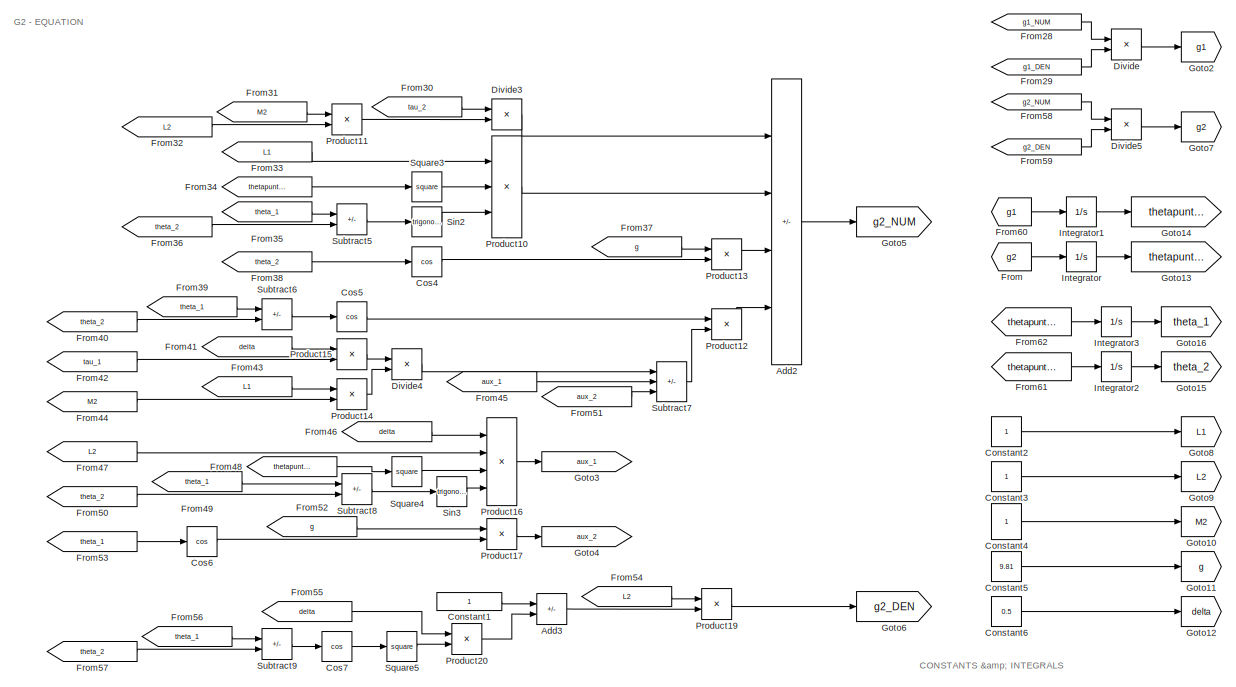
[diagram: root canvas - part 1/3, middle right region]
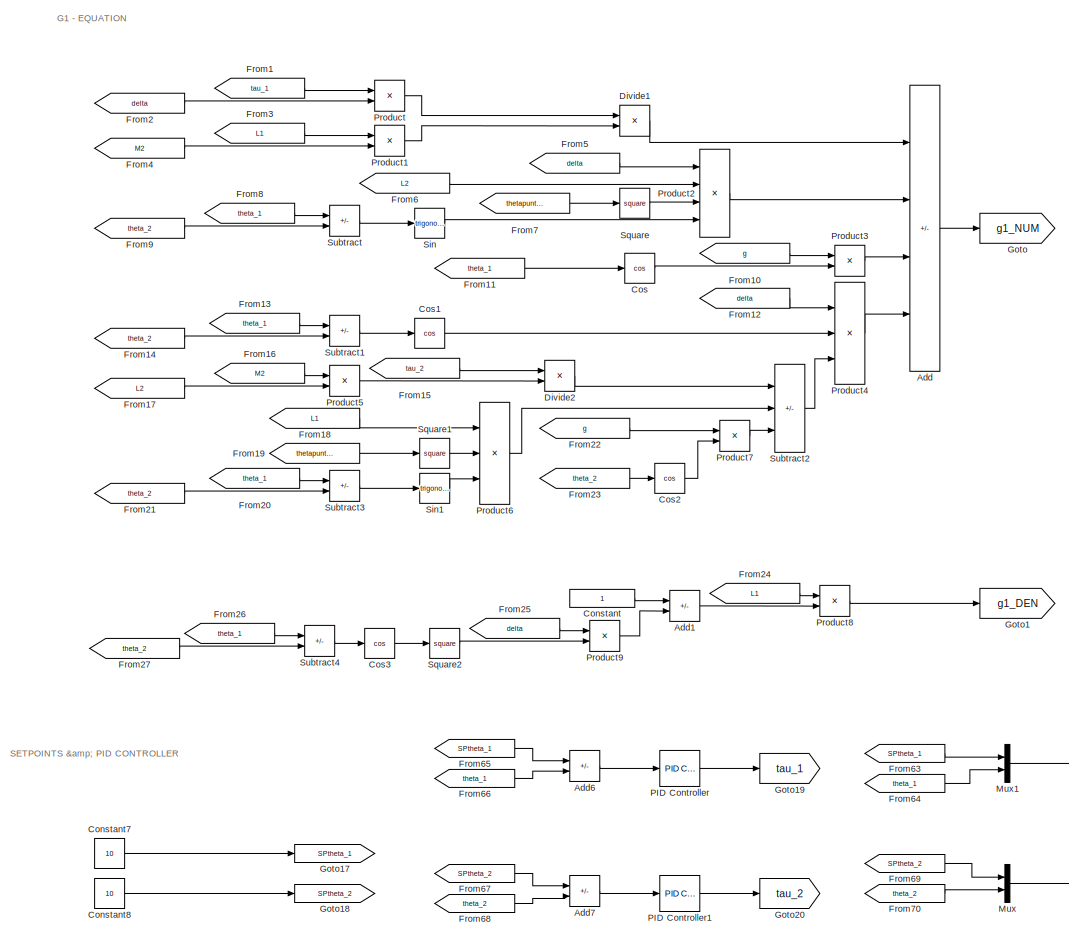
[diagram: root canvas - part 2/3, left side, full height]
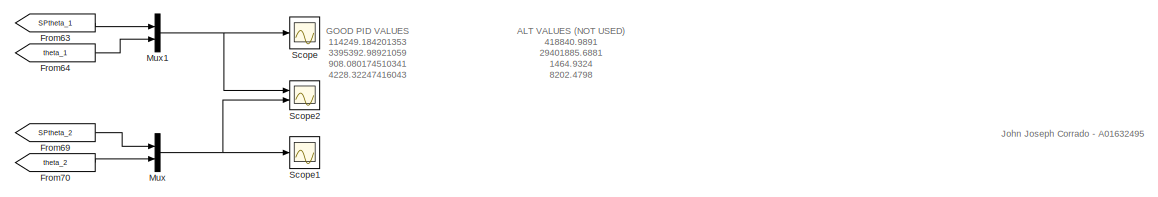
[diagram: root canvas - part 3/3, bottom center region]
MODEL slx_419f2463d6c4
KIND model
CONFIG AbsTol = auto
CONFIG EnableMultiTasking = off
CONFIG FixedStep = auto
CONFIG MaxStep = auto
CONFIG MinStep = auto
CONFIG RelTol = 1e-3
CONFIG SampleTimeConstraint = Unconstrained
CONFIG SolverName = VariableStepAuto
CONFIG StartTime = 0.0
CONFIG StopTime = 1
BLOCK [Sum] Add
  IconShape = rectangular
  Inputs = +---
  Ports = [4, 1]
BLOCK [Sum] Add1
  IconShape = rectangular
  Inputs = +-
  Ports = [2, 1]
BLOCK [Sum] Add2
  IconShape = rectangular
  Inputs = ++--
  Ports = [4, 1]
BLOCK [Sum] Add3
  IconShape = rectangular
  Inputs = +-
  Ports = [2, 1]
BLOCK [Sum] Add6
  IconShape = rectangular
  Inputs = +-
  Ports = [2, 1]
BLOCK [Sum] Add7
  IconShape = rectangular
  Inputs = +-
  Ports = [2, 1]
BLOCK [Constant] Constant
BLOCK [Constant] Constant1
BLOCK [Constant] Constant2
BLOCK [Constant] Constant3
BLOCK [Constant] Constant4
BLOCK [Constant] Constant5
  Value = 9.81
BLOCK [Constant] Constant6
  Value = 0.5
BLOCK [Constant] Constant7
  Value = 10
BLOCK [Constant] Constant8
  Value = 10
BLOCK [Trigonometry] Cos
  Operator = cos
  Ports = [1, 1]
BLOCK [Trigonometry] Cos1
  Operator = cos
  Ports = [1, 1]
BLOCK [Trigonometry] Cos2
  Operator = cos
  Ports = [1, 1]
BLOCK [Trigonometry] Cos3
  Operator = cos
  Ports = [1, 1]
BLOCK [Trigonometry] Cos4
  Operator = cos
  Ports = [1, 1]
BLOCK [Trigonometry] Cos5
  Operator = cos
  Ports = [1, 1]
BLOCK [Trigonometry] Cos6
  Operator = cos
  Ports = [1, 1]
BLOCK [Trigonometry] Cos7
  Operator = cos
  Ports = [1, 1]
BLOCK [Product] Divide
  Inputs = */
  Ports = [2, 1]
BLOCK [Product] Divide1
  Inputs = */
  Ports = [2, 1]
BLOCK [Product] Divide2
  Inputs = */
  Ports = [2, 1]
BLOCK [Product] Divide3
  Inputs = */
  Ports = [2, 1]
BLOCK [Product] Divide4
  Inputs = */
  Ports = [2, 1]
BLOCK [Product] Divide5
  Inputs = */
  Ports = [2, 1]
BLOCK [From] From
  GotoTag = g2
BLOCK [From] From1
  GotoTag = tau_1
BLOCK [From] From10
  GotoTag = g
BLOCK [From] From11
  GotoTag = theta_1
BLOCK [From] From12
  GotoTag = delta
BLOCK [From] From13
  GotoTag = theta_1
BLOCK [From] From14
  GotoTag = theta_2
BLOCK [From] From15
  GotoTag = tau_2
BLOCK [From] From16
  GotoTag = M2
BLOCK [From] From17
  GotoTag = L2
BLOCK [From] From18
  GotoTag = L1
BLOCK [From] From19
  GotoTag = thetapunto1
BLOCK [From] From2
  GotoTag = delta
BLOCK [From] From20
  GotoTag = theta_1
BLOCK [From] From21
  GotoTag = theta_2
BLOCK [From] From22
  GotoTag = g
BLOCK [From] From23
  GotoTag = theta_2
BLOCK [From] From24
  GotoTag = L1
BLOCK [From] From25
  GotoTag = delta
BLOCK [From] From26
  GotoTag = theta_1
BLOCK [From] From27
  GotoTag = theta_2
BLOCK [From] From28
  GotoTag = g1_NUM
BLOCK [From] From29
  GotoTag = g1_DEN
BLOCK [From] From3
  GotoTag = L1
BLOCK [From] From30
  GotoTag = tau_2
BLOCK [From] From31
  GotoTag = M2
BLOCK [From] From32
  GotoTag = L2
BLOCK [From] From33
  GotoTag = L1
BLOCK [From] From34
  GotoTag = thetapunto1
BLOCK [From] From35
  GotoTag = theta_1
BLOCK [From] From36
  GotoTag = theta_2
BLOCK [From] From37
  GotoTag = g
BLOCK [From] From38
  GotoTag = theta_2
BLOCK [From] From39
  GotoTag = theta_1
BLOCK [From] From4
  GotoTag = M2
BLOCK [From] From40
  GotoTag = theta_2
BLOCK [From] From41
  GotoTag = delta
BLOCK [From] From42
  GotoTag = tau_1
BLOCK [From] From43
  GotoTag = L1
BLOCK [From] From44
  GotoTag = M2
BLOCK [From] From45
  GotoTag = aux_1
BLOCK [From] From46
  GotoTag = delta
BLOCK [From] From47
  GotoTag = L2
BLOCK [From] From48
  GotoTag = thetapunto2
BLOCK [From] From49
  GotoTag = theta_1
BLOCK [From] From5
  GotoTag = delta
BLOCK [From] From50
  GotoTag = theta_2
BLOCK [From] From51
  GotoTag = aux_2
BLOCK [From] From52
  GotoTag = g
BLOCK [From] From53
  GotoTag = theta_1
BLOCK [From] From54
  GotoTag = L2
BLOCK [From] From55
  GotoTag = delta
BLOCK [From] From56
  GotoTag = theta_1
BLOCK [From] From57
  GotoTag = theta_2
BLOCK [From] From58
  GotoTag = g2_NUM
BLOCK [From] From59
  GotoTag = g2_DEN
BLOCK [From] From6
  GotoTag = L2
BLOCK [From] From60
  GotoTag = g1
BLOCK [From] From61
  GotoTag = thetapunto2
BLOCK [From] From62
  GotoTag = thetapunto1
BLOCK [From] From63
  GotoTag = SPtheta_1
BLOCK [From] From64
  GotoTag = theta_1
BLOCK [From] From65
  GotoTag = SPtheta_1
BLOCK [From] From66
  GotoTag = theta_1
BLOCK [From] From67
  GotoTag = SPtheta_2
BLOCK [From] From68
  GotoTag = theta_2
BLOCK [From] From69
  GotoTag = SPtheta_2
BLOCK [From] From7
  GotoTag = thetapunto2
BLOCK [From] From70
  GotoTag = theta_2
BLOCK [From] From8
  GotoTag = theta_1
BLOCK [From] From9
  GotoTag = theta_2
BLOCK [Goto] Goto
  GotoTag = g1_NUM
BLOCK [Goto] Goto1
  GotoTag = g1_DEN
BLOCK [Goto] Goto10
  GotoTag = M2
BLOCK [Goto] Goto11
  GotoTag = g
BLOCK [Goto] Goto12
  GotoTag = delta
BLOCK [Goto] Goto13
  GotoTag = thetapunto2
BLOCK [Goto] Goto14
  GotoTag = thetapunto1
BLOCK [Goto] Goto15
  GotoTag = theta_2
BLOCK [Goto] Goto16
  GotoTag = theta_1
BLOCK [Goto] Goto17
  GotoTag = SPtheta_1
BLOCK [Goto] Goto18
  GotoTag = SPtheta_2
BLOCK [Goto] Goto19
  GotoTag = tau_1
BLOCK [Goto] Goto2
  GotoTag = g1
BLOCK [Goto] Goto20
  GotoTag = tau_2
BLOCK [Goto] Goto3
  GotoTag = aux_1
BLOCK [Goto] Goto4
  GotoTag = aux_2
BLOCK [Goto] Goto5
  GotoTag = g2_NUM
BLOCK [Goto] Goto6
  GotoTag = g2_DEN
BLOCK [Goto] Goto7
  GotoTag = g2
BLOCK [Goto] Goto8
  GotoTag = L1
BLOCK [Goto] Goto9
  GotoTag = L2
BLOCK [Integrator] Integrator
  Ports = [1, 1]
BLOCK [Integrator] Integrator1
  Ports = [1, 1]
BLOCK [Integrator] Integrator2
  Ports = [1, 1]
BLOCK [Integrator] Integrator3
  Ports = [1, 1]
BLOCK [Mux] Mux
  DisplayOption = bar
  Inputs = 2
  Ports = [2, 1]
BLOCK [Mux] Mux1
  DisplayOption = bar
  Inputs = 2
  Ports = [2, 1]
BLOCK [Reference] PID Controller  REF=slpidlib/PID Controller
  Ports = [1, 1]
  SourceBlock = slpidlib/PID Controller
  SourceProductBaseCode = SL
  SourceType = PID 1dof
BLOCK [Reference] PID Controller1  REF=slpidlib/PID Controller
  Ports = [1, 1]
  SourceBlock = slpidlib/PID Controller
  SourceProductBaseCode = SL
  SourceType = PID 1dof
BLOCK [Product] Product
  Ports = [2, 1]
BLOCK [Product] Product1
  Ports = [2, 1]
BLOCK [Product] Product10
  Inputs = 3
  Ports = [3, 1]
BLOCK [Product] Product11
  Ports = [2, 1]
BLOCK [Product] Product12
  Ports = [2, 1]
BLOCK [Product] Product13
  Ports = [2, 1]
BLOCK [Product] Product14
  Ports = [2, 1]
BLOCK [Product] Product15
  Ports = [2, 1]
BLOCK [Product] Product16
  Inputs = 4
  Ports = [4, 1]
BLOCK [Product] Product17
  Ports = [2, 1]
BLOCK [Product] Product19
  Ports = [2, 1]
BLOCK [Product] Product2
  Inputs = 4
  Ports = [4, 1]
BLOCK [Product] Product20
  Ports = [2, 1]
BLOCK [Product] Product3
  Ports = [2, 1]
BLOCK [Product] Product4
  Inputs = 3
  Ports = [3, 1]
BLOCK [Product] Product5
  Ports = [2, 1]
BLOCK [Product] Product6
  Inputs = 3
  Ports = [3, 1]
BLOCK [Product] Product7
  Ports = [2, 1]
BLOCK [Product] Product8
  Ports = [2, 1]
BLOCK [Product] Product9
  Ports = [2, 1]
BLOCK [Scope] Scope
  Floating = off
  NumInputPorts = 1
  Ports = [1]
  ScopeSpecificationString = Simulink.scopes.TimeScopeBlockCfg('CurrentConfiguration', extmgr.ConfigurationSet(extmgr.Configuration('Core','General UI',true),extmgr.Configuration('Core','Source UI',true),extmgr.Configuration('Sources','WiredSimulink',true),extmgr.Configuration('Visuals','Time Domain',true),extmgr.Configuration('Tools','Plot Navigation',true),extmgr.Configuration('Tools','Measurements',true)),'Version','2022a'...<+1ch>
BLOCK [Scope] Scope1
  Floating = off
  NumInputPorts = 1
  Ports = [1]
  ScopeSpecificationString = Simulink.scopes.TimeScopeBlockCfg('CurrentConfiguration', extmgr.ConfigurationSet(extmgr.Configuration('Core','General UI',true),extmgr.Configuration('Core','Source UI',true),extmgr.Configuration('Sources','WiredSimulink',true,'DataLoggingVariableName','ScopeData1'),extmgr.Configuration('Visuals','Time Domain',true),extmgr.Configuration('Tools','Plot Navigation',true),extmgr.Configuration('Tools',...<+40ch>
BLOCK [Scope] Scope2
  Floating = off
  NumInputPorts = 2
  Ports = [2]
  ScopeSpecificationString = Simulink.scopes.TimeScopeBlockCfg('CurrentConfiguration', extmgr.ConfigurationSet(extmgr.Configuration('Core','General UI',true),extmgr.Configuration('Core','Source UI',true),extmgr.Configuration('Sources','WiredSimulink',true,'DataLoggingVariableName','ScopeData2'),extmgr.Configuration('Visuals','Time Domain',true,'SerializedDisplays',{struct('MinYLimReal','-1.97913','MaxYLimReal','16.69388','YLa...<+1515ch>
BLOCK [Trigonometry] Sin
  Ports = [1, 1]
BLOCK [Trigonometry] Sin1
  Ports = [1, 1]
BLOCK [Trigonometry] Sin2
  Ports = [1, 1]
BLOCK [Trigonometry] Sin3
  Ports = [1, 1]
BLOCK [Math] Square
  Operator = square
  Ports = [1, 1]
BLOCK [Math] Square1
  Operator = square
  Ports = [1, 1]
BLOCK [Math] Square2
  Operator = square
  Ports = [1, 1]
BLOCK [Math] Square3
  Operator = square
  Ports = [1, 1]
BLOCK [Math] Square4
  Operator = square
  Ports = [1, 1]
BLOCK [Math] Square5
  Operator = square
  Ports = [1, 1]
BLOCK [Sum] Subtract
  IconShape = rectangular
  Inputs = +-
  Ports = [2, 1]
BLOCK [Sum] Subtract1
  IconShape = rectangular
  Inputs = +-
  Ports = [2, 1]
BLOCK [Sum] Subtract2
  IconShape = rectangular
  Inputs = ++-
  Ports = [3, 1]
BLOCK [Sum] Subtract3
  IconShape = rectangular
  Inputs = +-
  Ports = [2, 1]
BLOCK [Sum] Subtract4
  IconShape = rectangular
  Inputs = +-
  Ports = [2, 1]
BLOCK [Sum] Subtract5
  IconShape = rectangular
  Inputs = +-
  Ports = [2, 1]
BLOCK [Sum] Subtract6
  IconShape = rectangular
  Inputs = +-
  Ports = [2, 1]
BLOCK [Sum] Subtract7
  IconShape = rectangular
  Inputs = +--
  Ports = [3, 1]
BLOCK [Sum] Subtract8
  IconShape = rectangular
  Inputs = +-
  Ports = [2, 1]
BLOCK [Sum] Subtract9
  IconShape = rectangular
  Inputs = +-
  Ports = [2, 1]
ANNOTATION (root): John Joseph Corrado - A01632495
ANNOTATION (root): SETPOINTS & PID CONTROLLER
ANNOTATION (root): CONSTANTS & INTEGRALS
ANNOTATION (root): G1 - EQUATION
ANNOTATION (root): G2 - EQUATION
ANNOTATION (root): ALT VALUES (NOT USED) 418840.9891 29401885.6881 1464.9324 8202.4798 1873215.5601 445819594.6551 1704.4461 10240.4499
ANNOTATION (root): GOOD PID VALUES 114249.184201353 3395392.98921059 908.080174510341 4228.32247416043 25565.8292013447 389143.824057423 335.250158154316 34347.6360627222
LINE Add1:1 -> Product8:2
LINE Add2:1 -> Goto5:1
LINE Add3:1 -> Product19:2
LINE Add6:1 -> PID Controller:1
LINE Add7:1 -> PID Controller1:1
LINE Add:1 -> Goto:1
LINE Constant1:1 -> Add3:1
LINE Constant2:1 -> Goto8:1
LINE Constant3:1 -> Goto9:1
LINE Constant4:1 -> Goto10:1
LINE Constant5:1 -> Goto11:1
LINE Constant6:1 -> Goto12:1
LINE Constant7:1 -> Goto17:1
LINE Constant8:1 -> Goto18:1
LINE Constant:1 -> Add1:1
LINE Cos1:1 -> Product4:2
LINE Cos2:1 -> Product7:2
LINE Cos3:1 -> Square2:1
LINE Cos4:1 -> Product13:2
LINE Cos5:1 -> Product12:1
LINE Cos6:1 -> Product17:2
LINE Cos7:1 -> Square5:1
LINE Cos:1 -> Product3:2
LINE Divide1:1 -> Add:1
LINE Divide2:1 -> Subtract2:1
LINE Divide3:1 -> Add2:1
LINE Divide4:1 -> Subtract7:1
LINE Divide5:1 -> Goto7:1
LINE Divide:1 -> Goto2:1
LINE From10:1 -> Product3:1
LINE From11:1 -> Cos:1
LINE From12:1 -> Product4:1
LINE From13:1 -> Subtract1:1
LINE From14:1 -> Subtract1:2
LINE From15:1 -> Divide2:1
LINE From16:1 -> Product5:1
LINE From17:1 -> Product5:2
LINE From18:1 -> Product6:1
LINE From19:1 -> Square1:1
LINE From1:1 -> Product:1
LINE From20:1 -> Subtract3:1
LINE From21:1 -> Subtract3:2
LINE From22:1 -> Product7:1
LINE From23:1 -> Cos2:1
LINE From24:1 -> Product8:1
LINE From25:1 -> Product9:1
LINE From26:1 -> Subtract4:1
LINE From27:1 -> Subtract4:2
LINE From28:1 -> Divide:1
LINE From29:1 -> Divide:2
LINE From2:1 -> Product:2
LINE From30:1 -> Divide3:1
LINE From31:1 -> Product11:1
LINE From32:1 -> Product11:2
LINE From33:1 -> Product10:1
LINE From34:1 -> Square3:1
LINE From35:1 -> Subtract5:1
LINE From36:1 -> Subtract5:2
LINE From37:1 -> Product13:1
LINE From38:1 -> Cos4:1
LINE From39:1 -> Subtract6:1
LINE From3:1 -> Product1:1
LINE From40:1 -> Subtract6:2
LINE From41:1 -> Product15:1
LINE From42:1 -> Product15:2
LINE From43:1 -> Product14:1
LINE From44:1 -> Product14:2
LINE From45:1 -> Subtract7:2
LINE From46:1 -> Product16:1
LINE From47:1 -> Product16:2
LINE From48:1 -> Square4:1
LINE From49:1 -> Subtract8:1
LINE From4:1 -> Product1:2
LINE From50:1 -> Subtract8:2
LINE From51:1 -> Subtract7:3
LINE From52:1 -> Product17:1
LINE From53:1 -> Cos6:1
LINE From54:1 -> Product19:1
LINE From55:1 -> Product20:1
LINE From56:1 -> Subtract9:1
LINE From57:1 -> Subtract9:2
LINE From58:1 -> Divide5:1
LINE From59:1 -> Divide5:2
LINE From5:1 -> Product2:1
LINE From60:1 -> Integrator1:1
LINE From61:1 -> Integrator2:1
LINE From62:1 -> Integrator3:1
LINE From63:1 -> Mux1:1
LINE From64:1 -> Mux1:2
LINE From65:1 -> Add6:1
LINE From66:1 -> Add6:2
LINE From67:1 -> Add7:1
LINE From68:1 -> Add7:2
LINE From69:1 -> Mux:1
LINE From6:1 -> Product2:2
LINE From70:1 -> Mux:2
LINE From7:1 -> Square:1
LINE From8:1 -> Subtract:1
LINE From9:1 -> Subtract:2
LINE From:1 -> Integrator:1
LINE Integrator1:1 -> Goto14:1
LINE Integrator2:1 -> Goto15:1
LINE Integrator3:1 -> Goto16:1
LINE Integrator:1 -> Goto13:1
NET Mux1:1 -> Scope2:1, Scope:1
NET Mux:1 -> Scope1:1, Scope2:2
LINE PID Controller1:1 -> Goto20:1
LINE PID Controller:1 -> Goto19:1
LINE Product10:1 -> Add2:2
LINE Product11:1 -> Divide3:2
LINE Product12:1 -> Add2:4
LINE Product13:1 -> Add2:3
LINE Product14:1 -> Divide4:2
LINE Product15:1 -> Divide4:1
LINE Product16:1 -> Goto3:1
LINE Product17:1 -> Goto4:1
LINE Product19:1 -> Goto6:1
LINE Product1:1 -> Divide1:2
LINE Product20:1 -> Add3:2
LINE Product2:1 -> Add:2
LINE Product3:1 -> Add:3
LINE Product4:1 -> Add:4
LINE Product5:1 -> Divide2:2
LINE Product6:1 -> Subtract2:2
LINE Product7:1 -> Subtract2:3
LINE Product8:1 -> Goto1:1
LINE Product9:1 -> Add1:2
LINE Product:1 -> Divide1:1
LINE Sin1:1 -> Product6:3
LINE Sin2:1 -> Product10:3
LINE Sin3:1 -> Product16:4
LINE Sin:1 -> Product2:4
LINE Square1:1 -> Product6:2
LINE Square2:1 -> Product9:2
LINE Square3:1 -> Product10:2
LINE Square4:1 -> Product16:3
LINE Square5:1 -> Product20:2
LINE Square:1 -> Product2:3
LINE Subtract1:1 -> Cos1:1
LINE Subtract2:1 -> Product4:3
LINE Subtract3:1 -> Sin1:1
LINE Subtract4:1 -> Cos3:1
LINE Subtract5:1 -> Sin2:1
LINE Subtract6:1 -> Cos5:1
LINE Subtract7:1 -> Product12:2
LINE Subtract8:1 -> Sin3:1
LINE Subtract9:1 -> Cos7:1
LINE Subtract:1 -> Sin:1
note: NET lines group one-source signal fan-out (src -> all destinations, sorted); 1:1 wires keep LINE
